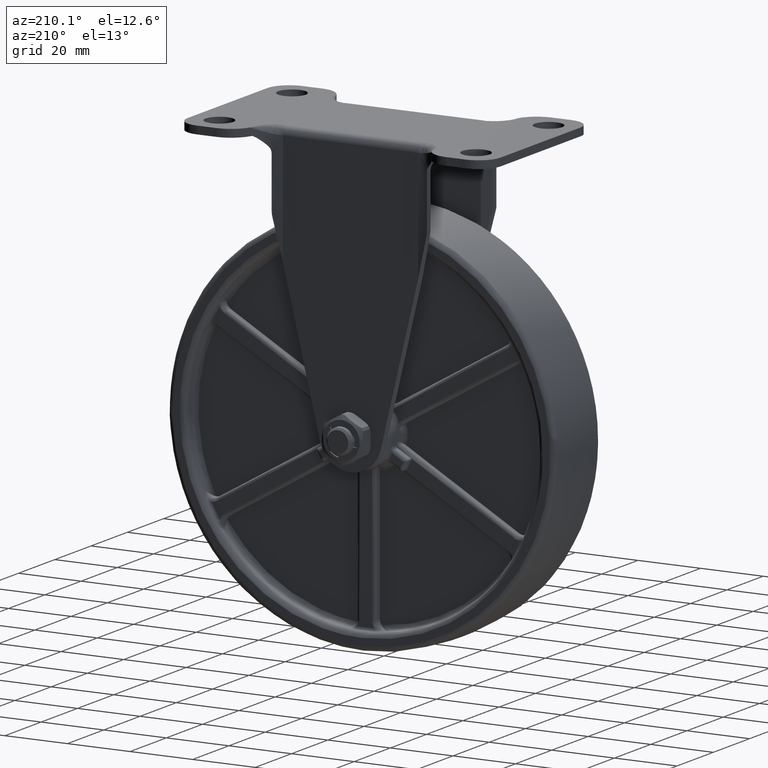
[diagram: clean part render]
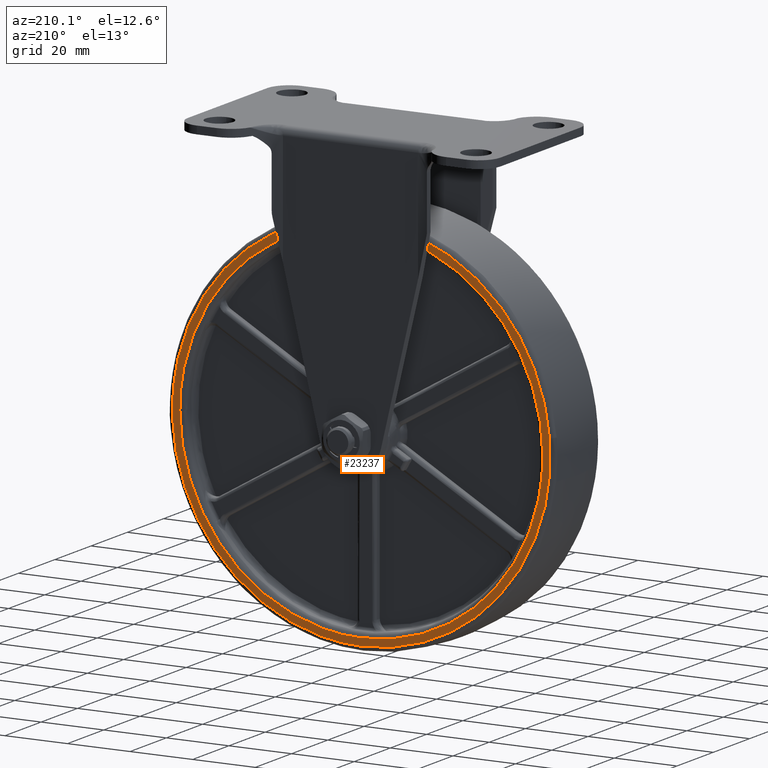
[diagram: same view with one face highlighted and labeled with its STEP entity id]
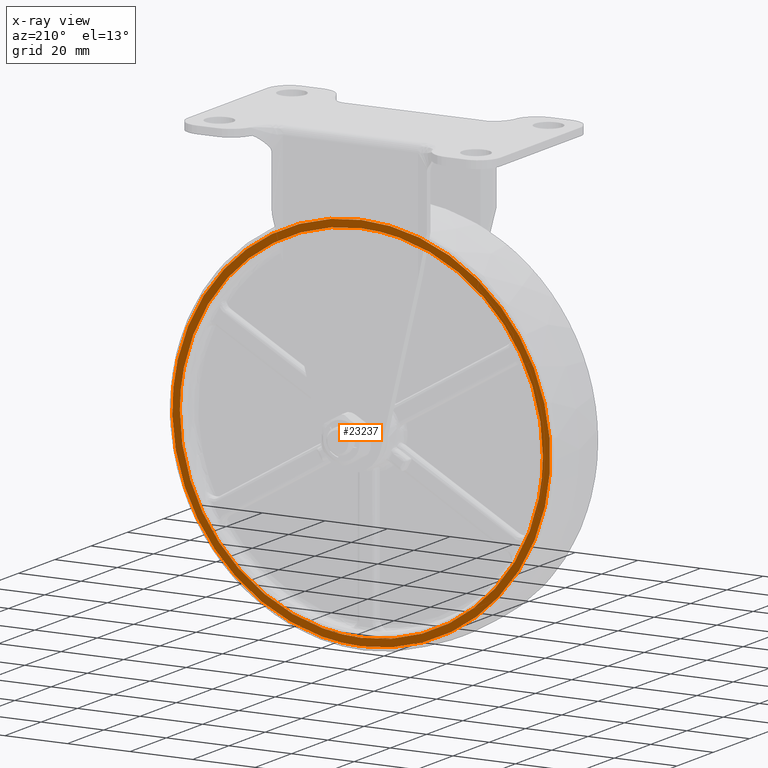
[diagram: x-ray of the same camera — body ghosted, the highlighted face saturated]
A machine part, auxiliary view. The second image highlights one B-rep face of the part: STEP entity #23237.
The next image is the same camera in x-ray: the body ghosted, the highlighted face saturated — about 0% of this face is hidden behind the body in this view.
In plain terms, the highlighted face is a freeform B-spline surface patch.
Its self-contained STEP definition (entity closure, byte-faithful):
#2487=CARTESIAN_POINT('',(-97.007304999059983,12.500000000000000,-83.500000000000028));
#2488=VERTEX_POINT('',#2487);
#2489=CARTESIAN_POINT('',(-39.0,12.500000000000000,-25.492695000000001));
#2490=VERTEX_POINT('',#2489);
#2491=CARTESIAN_POINT('',(-97.007304999060025,12.500000000000011,-83.500000000000071));
#2492=CARTESIAN_POINT('',(-97.007305000000017,12.499999999999998,-25.492695000000012));
#2493=CARTESIAN_POINT('',(-39.0,12.500000000000000,-25.492695000000001));
#2501=(BOUNDED_CURVE()B_SPLINE_CURVE(2,(#2491,#2492,#2493),.UNSPECIFIED.,.F.,.U.)B_SPLINE_CURVE_WITH_KNOTS((3,3),(0.750000000000000,1.0),.UNSPECIFIED.)CURVE()GEOMETRIC_REPRESENTATION_ITEM()RATIONAL_B_SPLINE_CURVE((1.0,0.707106781186547,1.0))REPRESENTATION_ITEM(''));
#2502=EDGE_CURVE('',#2488,#2490,#2501,.T.);
#2504=CARTESIAN_POINT('',(19.007304999059969,12.500000000000000,-83.500000000000000));
#2505=VERTEX_POINT('',#2504);
#2506=CARTESIAN_POINT('',(-39.0,12.500000000000000,-25.492695000000001));
#2507=CARTESIAN_POINT('',(19.007305000000017,12.499999999999998,-25.492695000000012));
#2508=CARTESIAN_POINT('',(19.007304999059969,12.500000000000000,-83.500000000000000));
#2516=(BOUNDED_CURVE()B_SPLINE_CURVE(2,(#2506,#2507,#2508),.UNSPECIFIED.,.F.,.U.)B_SPLINE_CURVE_WITH_KNOTS((3,3),(0.0,0.250000000000000),.UNSPECIFIED.)CURVE()GEOMETRIC_REPRESENTATION_ITEM()RATIONAL_B_SPLINE_CURVE((1.0,0.707106781186547,1.0))REPRESENTATION_ITEM(''));
#2517=EDGE_CURVE('',#2490,#2505,#2516,.T.);
#2678=CARTESIAN_POINT('',(-39.0,12.500000000000000,-141.507305000000000));
#2679=VERTEX_POINT('',#2678);
#2680=CARTESIAN_POINT('',(-39.0,12.500000000000000,-141.507305000000000));
#2681=CARTESIAN_POINT('',(-97.007304999999704,12.500000000000000,-141.507305000000000));
#2682=CARTESIAN_POINT('',(-97.007304999059983,12.500000000000005,-83.500000000000028));
#2690=(BOUNDED_CURVE()B_SPLINE_CURVE(2,(#2680,#2681,#2682),.UNSPECIFIED.,.F.,.U.)B_SPLINE_CURVE_WITH_KNOTS((3,3),(0.500000000000000,0.749999999999999),.UNSPECIFIED.)CURVE()GEOMETRIC_REPRESENTATION_ITEM()RATIONAL_B_SPLINE_CURVE((1.0,0.707106781186549,0.999999999999998))REPRESENTATION_ITEM(''));
#2691=EDGE_CURVE('',#2679,#2488,#2690,.T.);
#2798=CARTESIAN_POINT('',(19.007304999059972,12.500000000000004,-83.500000000000000));
#2799=CARTESIAN_POINT('',(19.007304999999999,12.499999999999998,-141.507304999999950));
#2800=CARTESIAN_POINT('',(-39.0,12.500000000000000,-141.507305000000000));
#2808=(BOUNDED_CURVE()B_SPLINE_CURVE(2,(#2798,#2799,#2800),.UNSPECIFIED.,.F.,.U.)B_SPLINE_CURVE_WITH_KNOTS((3,3),(0.250000000000000,0.500000000000000),.UNSPECIFIED.)CURVE()GEOMETRIC_REPRESENTATION_ITEM()RATIONAL_B_SPLINE_CURVE((1.000000000000000,0.707106781186547,1.0))REPRESENTATION_ITEM(''));
#2809=EDGE_CURVE('',#2505,#2679,#2808,.T.);
#2843=CARTESIAN_POINT('',(21.355330227724838,12.500000000000000,-85.355972330810545));
#2844=VERTEX_POINT('',#2843);
#2845=CARTESIAN_POINT('',(-39.0,12.500000000000000,-143.883859752259500));
#2846=VERTEX_POINT('',#2845);
#2847=CARTESIAN_POINT('',(21.355330227724849,12.500000000000002,-85.355972330810545));
#2848=CARTESIAN_POINT('',(19.555553140339477,12.499999999999998,-143.883859752259470));
#2849=CARTESIAN_POINT('',(-39.0,12.500000000000000,-143.883859752259500));
#2857=(BOUNDED_CURVE()B_SPLINE_CURVE(2,(#2847,#2848,#2849),.UNSPECIFIED.,.F.,.U.)B_SPLINE_CURVE_WITH_KNOTS((3,3),(0.255400348391631,0.500000000000000),.UNSPECIFIED.)CURVE()GEOMETRIC_REPRESENTATION_ITEM()RATIONAL_B_SPLINE_CURVE((0.987619536401925,0.713433682879103,1.0))REPRESENTATION_ITEM(''));
#2858=EDGE_CURVE('',#2844,#2846,#2857,.T.);
#2922=CARTESIAN_POINT('',(-99.150392222688652,12.500000000000000,-78.195205660933084));
#2923=VERTEX_POINT('',#2922);
#2937=CARTESIAN_POINT('',(-39.0,12.500000000000000,-143.883859752259500));
#2938=CARTESIAN_POINT('',(-99.383859752259511,12.500000000000000,-143.883859752259550));
#2939=CARTESIAN_POINT('',(-99.383859752259497,12.500000000000000,-83.500000000000000));
#2940=CARTESIAN_POINT('',(-99.383859752259497,12.500000000000002,-80.842465299294304));
#2941=CARTESIAN_POINT('',(-99.150392222688652,12.500000000000000,-78.195205660933084));
#2949=(BOUNDED_CURVE()B_SPLINE_CURVE(2,(#2937,#2938,#2939,#2940,#2941),.UNSPECIFIED.,.F.,.U.)B_SPLINE_CURVE_WITH_KNOTS((3,2,3),(0.500000000000000,0.750000000000000,0.765281545149487),.UNSPECIFIED.)CURVE()GEOMETRIC_REPRESENTATION_ITEM()RATIONAL_B_SPLINE_CURVE((1.0,0.707106781186548,1.0,0.982096556210894,0.966381850698545))REPRESENTATION_ITEM(''));
#2950=EDGE_CURVE('',#2846,#2923,#2949,.T.);
#2978=CARTESIAN_POINT('',(-39.0,12.500000000000000,-23.116140247740500));
#2979=VERTEX_POINT('',#2978);
#2980=CARTESIAN_POINT('',(-39.0,12.500000000000000,-23.116140247740500));
#2981=CARTESIAN_POINT('',(21.383859752259514,12.500000000000000,-23.116140247740489));
#2982=CARTESIAN_POINT('',(21.383859752259500,12.500000000000000,-83.500000000000000));
#2983=CARTESIAN_POINT('',(21.383859752259500,12.500000000000002,-84.428205439672055));
#2984=CARTESIAN_POINT('',(21.355330227724846,12.499999999999996,-85.355972330810545));
#2992=(BOUNDED_CURVE()B_SPLINE_CURVE(2,(#2980,#2981,#2982,#2983,#2984),.UNSPECIFIED.,.F.,.U.)B_SPLINE_CURVE_WITH_KNOTS((3,2,3),(0.0,0.250000000000000,0.255400348391631),.UNSPECIFIED.)CURVE()GEOMETRIC_REPRESENTATION_ITEM()RATIONAL_B_SPLINE_CURVE((1.0,0.707106781186548,1.0,0.993673098307445,0.987619536401924))REPRESENTATION_ITEM(''));
#2993=EDGE_CURVE('',#2979,#2844,#2992,.T.);
#2995=CARTESIAN_POINT('',(-99.150392222688652,12.499999999999995,-78.195205660933084));
#2996=CARTESIAN_POINT('',(-94.292849185419968,12.500000000000002,-23.116140247740493));
#2997=CARTESIAN_POINT('',(-39.0,12.500000000000000,-23.116140247740500));
#3005=(BOUNDED_CURVE()B_SPLINE_CURVE(2,(#2995,#2996,#2997),.UNSPECIFIED.,.F.,.U.)B_SPLINE_CURVE_WITH_KNOTS((3,3),(0.765281545149487,1.0),.UNSPECIFIED.)CURVE()GEOMETRIC_REPRESENTATION_ITEM()RATIONAL_B_SPLINE_CURVE((0.966381850698545,0.725010224975653,1.0))REPRESENTATION_ITEM(''));
#3006=EDGE_CURVE('',#2923,#2979,#3005,.T.);
#23220=CARTESIAN_POINT('',(-105.399218581660610,12.500000000000000,-17.083792892561050));
#23221=CARTESIAN_POINT('',(-105.399218581660610,12.500000000000000,-149.916210346681590));
#23222=CARTESIAN_POINT('',(27.399184962961190,12.500000000000000,-17.083792892561050));
#23223=CARTESIAN_POINT('',(27.399184962961190,12.500000000000000,-149.916210346681590));
#23224=B_SPLINE_SURFACE_WITH_KNOTS('',1,1,((#23220,#23222),(#23221,#23223)),.UNSPECIFIED.,.F.,.F.,.U.,(2,2),(2,2),(0.0,132.832417454120590),(0.0,132.798403544621810),.UNSPECIFIED.);
#23225=ORIENTED_EDGE('',*,*,#2993,.T.);
#23226=ORIENTED_EDGE('',*,*,#2858,.T.);
#23227=ORIENTED_EDGE('',*,*,#2950,.T.);
#23228=ORIENTED_EDGE('',*,*,#3006,.T.);
#23229=EDGE_LOOP('',(#23225,#23226,#23227,#23228));
#23230=FACE_OUTER_BOUND('',#23229,.T.);
#23231=ORIENTED_EDGE('',*,*,#2517,.F.);
#23232=ORIENTED_EDGE('',*,*,#2502,.F.);
#23233=ORIENTED_EDGE('',*,*,#2691,.F.);
#23234=ORIENTED_EDGE('',*,*,#2809,.F.);
#23235=EDGE_LOOP('',(#23231,#23232,#23233,#23234));
#23236=FACE_BOUND('',#23235,.T.);
#23237=ADVANCED_FACE('',(#23230,#23236),#23224,.F.);